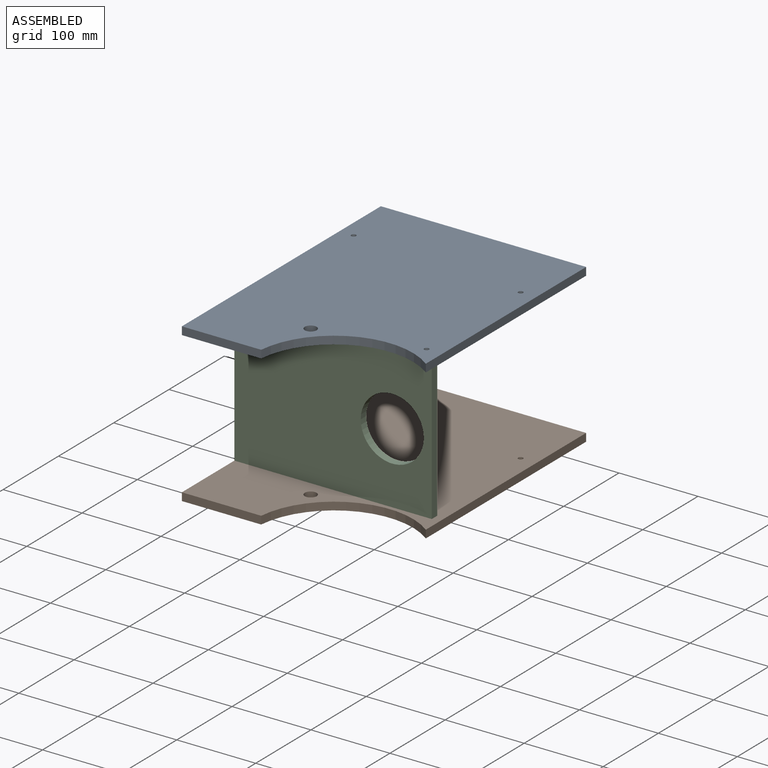
[diagram: assembled view]
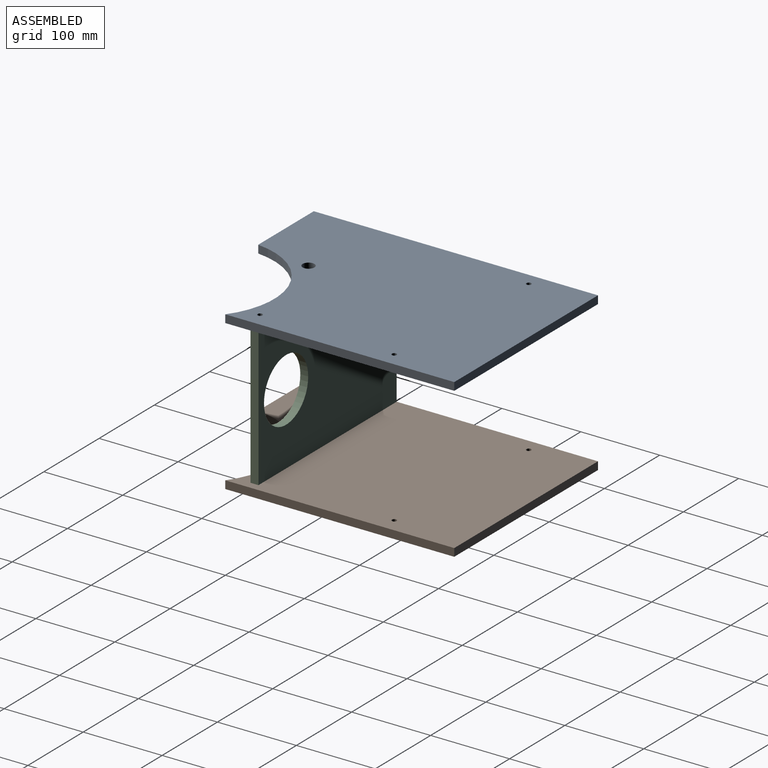
[diagram: assembled view, second angle]
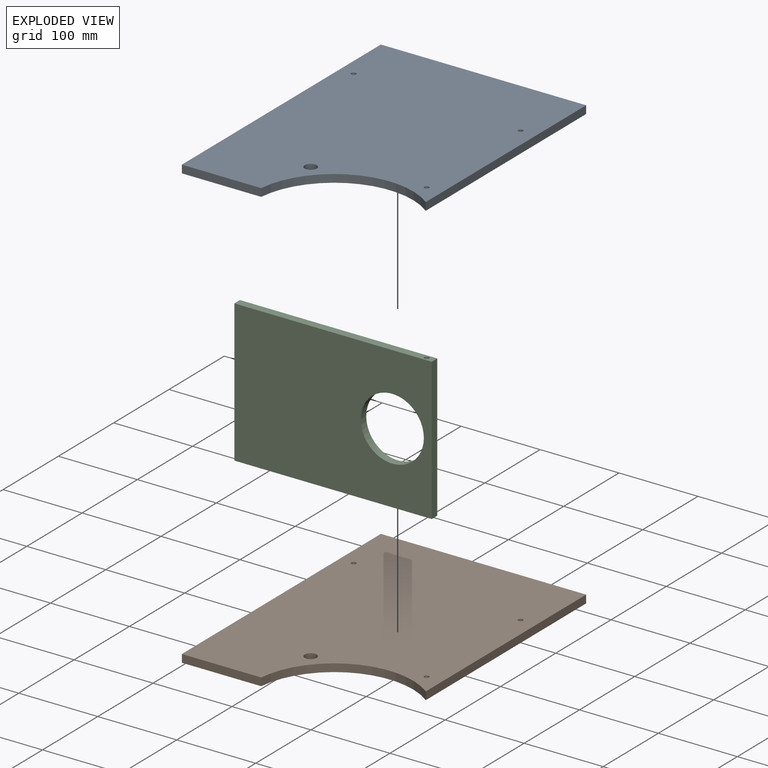
[diagram: exploded view]
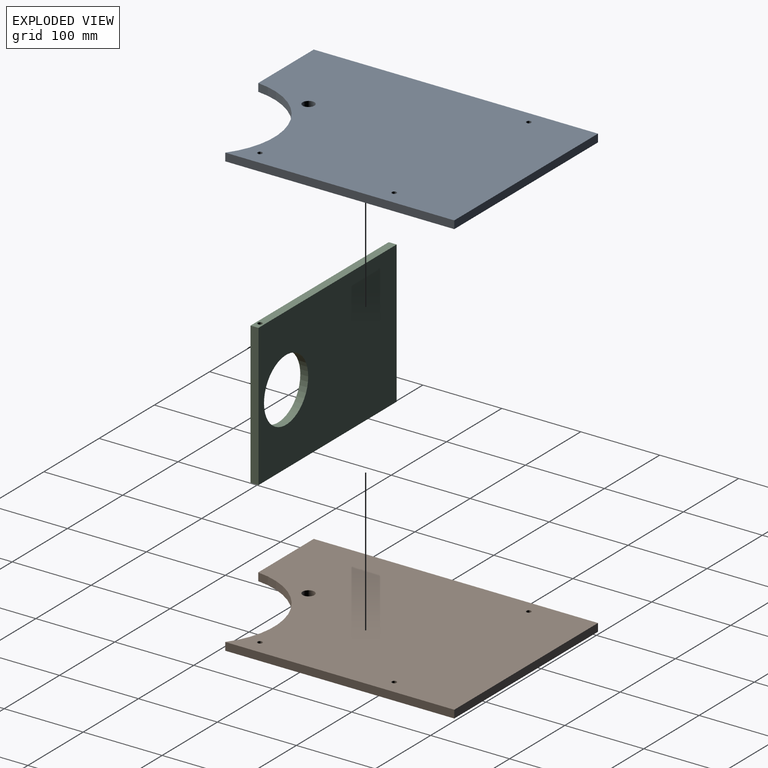
[diagram: exploded view, second angle]
ASSEMBLY  parts=3 mates=2
PART A: 11 faces, bbox 260x360x10 mm
  f0: plane 100.5x10mm, normal (0,-1,0), area 1005mm2, adj f1,f8,f9,f10
  f1: cylinder r=100mm len=159.5mm, axis (0,0,-1), area 2114.1mm2, adj f0,f2,f9,f10
  f2: plane 290x10mm, normal (1,0,0), area 2900mm2, adj f1,f3,f9,f10
  f3: plane 260x10mm, normal (0,1,0), area 2600mm2, adj f2,f8,f9,f10
  f4: cylinder r=7.5mm len=15mm, axis (0,0,-1), area 471.2mm2, adj f9,f10
  f5: cylinder r=3mm len=10mm, axis (0,0,-1), area 188.5mm2, adj f9,f10
  f6: cylinder r=3mm len=10mm, axis (0,0,-1), area 188.5mm2, adj f9,f10
  f7: cylinder r=3mm len=10mm, axis (0,0,-1), area 188.5mm2, adj f9,f10
  f8: plane 360x10mm, normal (-1,0,0), area 3600mm2, adj f0,f3,f9,f10
  f9: plane 360x260mm, normal (0,0,1), area 81465.3mm2, adj f0,f1,f2,f3,f4,f5,f6,f7
  f10: plane 360x260mm, normal (0,0,-1), area 81465.3mm2, adj f0,f1,f2,f3,f4,f5,f6,f7
PART B: same geometry as A
PART C: 19 faces, bbox 250x180x10 mm
  f0: plane 180x10mm, normal (-1,0,0), area 1800mm2, adj f1,f3,f5,f6
  f1: plane 250x10mm, normal (0,-1,0), area 2358.6mm2, adj f0,f2,f5,f6,f7,f9,f11,f13
  f2: plane 180x10mm, normal (1,0,0), area 1800mm2, adj f1,f3,f5,f6
  f3: plane 250x10mm, normal (0,1,0), area 2471.7mm2, adj f0,f2,f5,f6,f17
  f4: cylinder r=40mm len=80mm, axis (0,0,-1), area 2513.3mm2, adj f5,f6
  f5: plane 250x180mm, normal (0,0,1), area 39973.5mm2, adj f0,f1,f2,f3,f4
  f6: plane 250x180mm, normal (0,0,-1), area 39973.5mm2, adj f0,f1,f2,f3,f4
  f7: cylinder r=3mm len=25mm, axis (0,-1,0), area 471.2mm2, adj f1,f8
  f8: plane 6x6mm, normal (0,-1,0), area 28.3mm2, adj f7
  f9: cylinder r=3mm len=25mm, axis (0,-1,0), area 471.2mm2, adj f1,f10
  f10: plane 6x6mm, normal (0,-1,0), area 28.3mm2, adj f9
  f11: cylinder r=3mm len=25mm, axis (0,-1,0), area 471.2mm2, adj f1,f12
  f12: plane 6x6mm, normal (0,-1,0), area 28.3mm2, adj f11
  f13: cylinder r=3mm len=25mm, axis (0,-1,0), area 471.2mm2, adj f1,f14
  f14: plane 6x6mm, normal (0,-1,0), area 28.3mm2, adj f13
  f15: cylinder r=3mm len=25mm, axis (0,-1,0), area 471.2mm2, adj f1,f16
  f16: plane 6x6mm, normal (0,-1,0), area 28.3mm2, adj f15
  f17: cylinder r=3mm len=25mm, axis (0,1,0), area 471.2mm2, adj f3,f18
  f18: plane 6x6mm, normal (0,1,0), area 28.3mm2, adj f17
PLACE A t=(404.76,-214.69,146.37)mm
PLACE B t=(404.76,-214.69,-43.63)mm
PLACE C rot(axis=(1,0,0),90deg) t=(404.76,150.31,-839.69)mm
MATE fastened C.f15 <-> A.f6  axis (0,0,1) through (444.76,145.31,146.37)mm
MATE fastened C.f15 <-> B.f6  axis (0,0,-1) through (444.76,145.31,-33.63)mm
